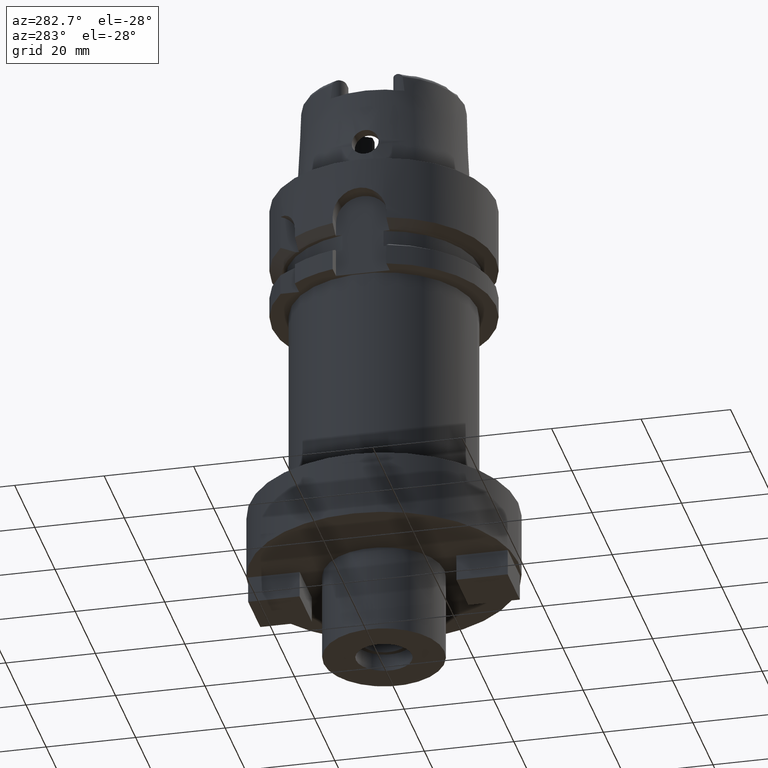
[diagram: clean part render]
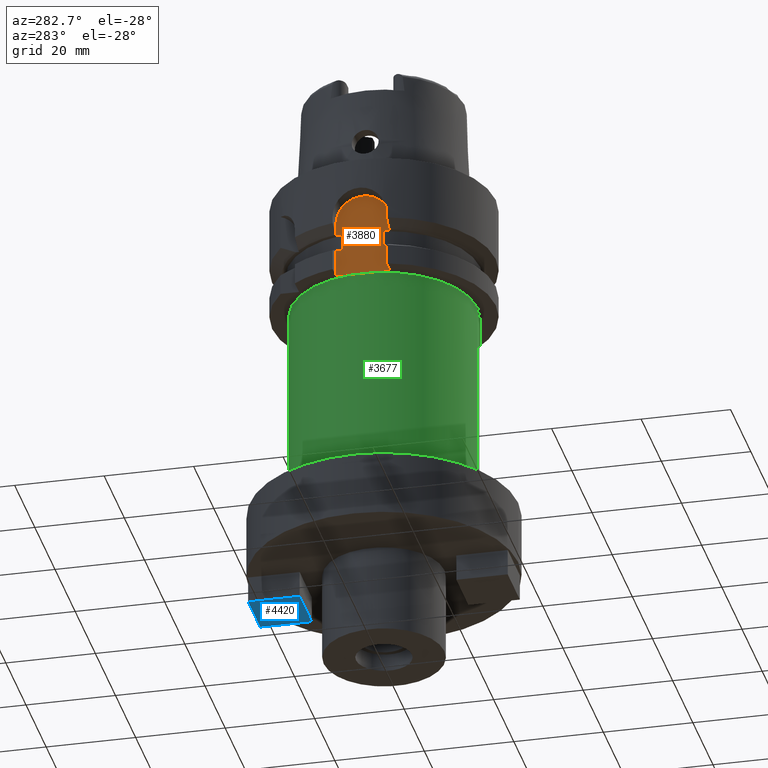
[diagram: same view with three faces highlighted in distinct colors, each labeled with its STEP entity id]
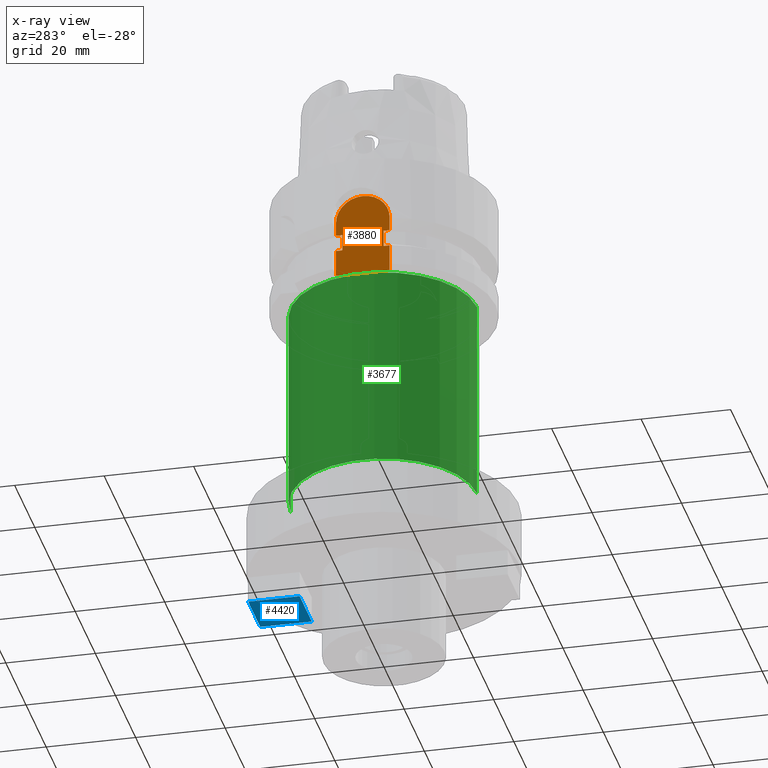
[diagram: x-ray of the same camera — body ghosted, the three highlighted faces saturated]
A machine part, auxiliary view with three faces highlighted in distinct colors.
The next image is the same camera in x-ray (body ghosted, the three faces saturated) — at least one of them is partly hidden behind the body in this view.
Their STEP definitions:

[orange] entity #3880 — the highlighted planar face has unit normal (1, 0, 0).
#1418=DIRECTION('',(0.E0,0.E0,1.E0));
#1419=VECTOR('',#1418,6.125E0);
#1420=CARTESIAN_POINT('',(-2.1E1,-6.E0,-2.6E1));
#1421=LINE('',#1420,#1419);
#1442=DIRECTION('',(0.E0,1.E0,0.E0));
#1443=VECTOR('',#1442,1.2E1);
#1444=CARTESIAN_POINT('',(-2.1E1,-6.E0,-2.6E1));
#1445=LINE('',#1444,#1443);
#1449=DIRECTION('',(2.044392294273E-14,1.E0,0.E0));
#1450=VECTOR('',#1449,1.390227771354E0);
#1451=CARTESIAN_POINT('',(-2.1E1,4.609772228646E0,-1.6125E1));
#1452=LINE('',#1451,#1450);
#1456=CARTESIAN_POINT('',(-2.1E1,0.E0,-1.3E1));
#1457=DIRECTION('',(1.E0,0.E0,0.E0));
#1458=DIRECTION('',(0.E0,1.E0,0.E0));
#1459=AXIS2_PLACEMENT_3D('',#1456,#1457,#1458);
#1464=CARTESIAN_POINT('',(-2.1E1,0.E0,-1.3E1));
#1465=DIRECTION('',(1.E0,0.E0,0.E0));
#1466=DIRECTION('',(0.E0,0.E0,1.E0));
#1467=AXIS2_PLACEMENT_3D('',#1464,#1465,#1466);
#1472=DIRECTION('',(-2.044392294273E-14,1.E0,0.E0));
#1473=VECTOR('',#1472,1.390227771354E0);
#1474=CARTESIAN_POINT('',(-2.1E1,-6.E0,-1.6125E1));
#1475=LINE('',#1474,#1473);
#1496=DIRECTION('',(0.E0,0.E0,-1.E0));
#1497=VECTOR('',#1496,6.125E0);
#1498=CARTESIAN_POINT('',(-2.1E1,6.E0,-1.9875E1));
#1499=LINE('',#1498,#1497);
#1570=DIRECTION('',(2.044392294273E-14,1.E0,0.E0));
#1571=VECTOR('',#1570,1.390227771354E0);
#1572=CARTESIAN_POINT('',(-2.1E1,4.609772228646E0,-1.9875E1));
#1573=LINE('',#1572,#1571);
#1618=DIRECTION('',(0.E0,0.E0,-1.E0));
#1619=VECTOR('',#1618,3.75E0);
#1620=CARTESIAN_POINT('',(-2.1E1,4.609772228646E0,-1.6125E1));
#1621=LINE('',#1620,#1619);
#1868=DIRECTION('',(0.E0,0.E0,1.E0));
#1869=VECTOR('',#1868,3.125E0);
#1870=CARTESIAN_POINT('',(-2.1E1,-6.E0,-1.6125E1));
#1871=LINE('',#1870,#1869);
#2039=DIRECTION('',(0.E0,0.E0,-1.E0));
#2040=VECTOR('',#2039,3.125E0);
#2041=CARTESIAN_POINT('',(-2.1E1,6.E0,-1.3E1));
#2042=LINE('',#2041,#2040);
#2088=DIRECTION('',(0.E0,0.E0,1.E0));
#2089=VECTOR('',#2088,3.75E0);
#2090=CARTESIAN_POINT('',(-2.1E1,-4.609772228646E0,-1.9875E1));
#2091=LINE('',#2090,#2089);
#2102=DIRECTION('',(-2.044392294273E-14,1.E0,0.E0));
#2103=VECTOR('',#2102,1.390227771354E0);
#2104=CARTESIAN_POINT('',(-2.1E1,-6.E0,-1.9875E1));
#2105=LINE('',#2104,#2103);
#2627=CARTESIAN_POINT('',(-2.1E1,6.E0,-2.6E1));
#2628=VERTEX_POINT('',#2627);
#2629=CARTESIAN_POINT('',(-2.1E1,-6.E0,-2.6E1));
#2630=VERTEX_POINT('',#2629);
#2673=CARTESIAN_POINT('',(-2.1E1,-6.E0,-1.9875E1));
#2674=VERTEX_POINT('',#2673);
#2677=CARTESIAN_POINT('',(-2.1E1,-6.E0,-1.6125E1));
#2679=VERTEX_POINT('',#2677);
#2681=CARTESIAN_POINT('',(-2.1E1,-6.E0,-1.3E1));
#2682=VERTEX_POINT('',#2681);
#2687=CARTESIAN_POINT('',(-2.1E1,6.E0,-1.9875E1));
#2688=VERTEX_POINT('',#2687);
#2689=CARTESIAN_POINT('',(-2.1E1,4.609772228646E0,-1.9875E1));
#2690=VERTEX_POINT('',#2689);
#2691=CARTESIAN_POINT('',(-2.1E1,4.609772228646E0,-1.6125E1));
#2692=VERTEX_POINT('',#2691);
#2693=CARTESIAN_POINT('',(-2.1E1,6.E0,-1.6125E1));
#2694=VERTEX_POINT('',#2693);
#2695=CARTESIAN_POINT('',(-2.1E1,6.E0,-1.3E1));
#2696=VERTEX_POINT('',#2695);
#2697=CARTESIAN_POINT('',(-2.1E1,0.E0,-7.E0));
#2698=VERTEX_POINT('',#2697);
#2699=CARTESIAN_POINT('',(-2.1E1,-4.609772228646E0,-1.6125E1));
#2700=VERTEX_POINT('',#2699);
#2701=CARTESIAN_POINT('',(-2.1E1,-4.609772228646E0,-1.9875E1));
#2702=VERTEX_POINT('',#2701);
#3849=CARTESIAN_POINT('',(-2.1E1,0.E0,0.E0));
#3850=DIRECTION('',(1.E0,0.E0,0.E0));
#3851=DIRECTION('',(0.E0,0.E0,1.E0));
#3852=AXIS2_PLACEMENT_3D('',#3849,#3850,#3851);
#3853=PLANE('',#3852);
#3854=ORIENTED_EDGE('',*,*,#3691,.T.);
#3856=ORIENTED_EDGE('',*,*,#3855,.F.);
#3858=ORIENTED_EDGE('',*,*,#3857,.F.);
#3860=ORIENTED_EDGE('',*,*,#3859,.F.);
#3862=ORIENTED_EDGE('',*,*,#3861,.T.);
#3864=ORIENTED_EDGE('',*,*,#3863,.F.);
#3866=ORIENTED_EDGE('',*,*,#3865,.T.);
#3868=ORIENTED_EDGE('',*,*,#3867,.T.);
#3870=ORIENTED_EDGE('',*,*,#3869,.F.);
#3872=ORIENTED_EDGE('',*,*,#3871,.T.);
#3874=ORIENTED_EDGE('',*,*,#3873,.F.);
#3876=ORIENTED_EDGE('',*,*,#3875,.F.);
#3877=ORIENTED_EDGE('',*,*,#3839,.F.);
#3878=EDGE_LOOP('',(#3854,#3856,#3858,#3860,#3862,#3864,#3866,#3868,#3870,#3872,
#3874,#3876,#3877));
#3879=FACE_OUTER_BOUND('',#3878,.F.);
#1460=CIRCLE('',#1459,6.E0);
#1468=CIRCLE('',#1467,6.E0);
#3691=EDGE_CURVE('',#2630,#2628,#1445,.T.);
#3839=EDGE_CURVE('',#2630,#2674,#1421,.T.);
#3855=EDGE_CURVE('',#2688,#2628,#1499,.T.);
#3857=EDGE_CURVE('',#2690,#2688,#1573,.T.);
#3859=EDGE_CURVE('',#2692,#2690,#1621,.T.);
#3861=EDGE_CURVE('',#2692,#2694,#1452,.T.);
#3863=EDGE_CURVE('',#2696,#2694,#2042,.T.);
#3865=EDGE_CURVE('',#2696,#2698,#1460,.T.);
#3867=EDGE_CURVE('',#2698,#2682,#1468,.T.);
#3869=EDGE_CURVE('',#2679,#2682,#1871,.T.);
#3871=EDGE_CURVE('',#2679,#2700,#1475,.T.);
#3873=EDGE_CURVE('',#2702,#2700,#2091,.T.);
#3875=EDGE_CURVE('',#2674,#2702,#2105,.T.);
#3880=ADVANCED_FACE('',(#3879),#3853,.F.);

[blue] entity #4420 — the highlighted planar face has unit normal (0, 0, -1).
#2189=DIRECTION('',(-1.E0,0.E0,0.E0));
#2190=VECTOR('',#2189,1.2E1);
#2191=CARTESIAN_POINT('',(6.E0,1.75E1,-9.6E1));
#2192=LINE('',#2191,#2190);
#2217=DIRECTION('',(0.E0,-1.E0,0.E0));
#2218=VECTOR('',#2217,1.15E1);
#2219=CARTESIAN_POINT('',(6.E0,2.9E1,-9.6E1));
#2220=LINE('',#2219,#2218);
#2245=DIRECTION('',(0.E0,-1.E0,0.E0));
#2246=VECTOR('',#2245,1.15E1);
#2247=CARTESIAN_POINT('',(-6.E0,2.9E1,-9.6E1));
#2248=LINE('',#2247,#2246);
#2252=DIRECTION('',(-1.E0,0.E0,0.E0));
#2253=VECTOR('',#2252,1.2E1);
#2254=CARTESIAN_POINT('',(6.E0,2.9E1,-9.6E1));
#2255=LINE('',#2254,#2253);
#2778=CARTESIAN_POINT('',(-6.E0,1.75E1,-9.6E1));
#2779=VERTEX_POINT('',#2778);
#2780=CARTESIAN_POINT('',(-6.E0,2.9E1,-9.6E1));
#2781=VERTEX_POINT('',#2780);
#2782=CARTESIAN_POINT('',(6.E0,1.75E1,-9.6E1));
#2783=VERTEX_POINT('',#2782);
#2784=CARTESIAN_POINT('',(6.E0,2.9E1,-9.6E1));
#2785=VERTEX_POINT('',#2784);
#4409=CARTESIAN_POINT('',(-6.E0,1.75E1,-9.6E1));
#4410=DIRECTION('',(0.E0,0.E0,-1.E0));
#4411=DIRECTION('',(0.E0,1.E0,0.E0));
#4412=AXIS2_PLACEMENT_3D('',#4409,#4410,#4411);
#4413=PLANE('',#4412);
#4414=ORIENTED_EDGE('',*,*,#4361,.T.);
#4415=ORIENTED_EDGE('',*,*,#4376,.F.);
#4416=ORIENTED_EDGE('',*,*,#4390,.F.);
#4417=ORIENTED_EDGE('',*,*,#4403,.T.);
#4418=EDGE_LOOP('',(#4414,#4415,#4416,#4417));
#4419=FACE_OUTER_BOUND('',#4418,.F.);
#4361=EDGE_CURVE('',#2781,#2779,#2248,.T.);
#4376=EDGE_CURVE('',#2783,#2779,#2192,.T.);
#4390=EDGE_CURVE('',#2785,#2783,#2220,.T.);
#4403=EDGE_CURVE('',#2785,#2781,#2255,.T.);
#4420=ADVANCED_FACE('',(#4419),#4413,.T.);

[green] entity #3677 — the highlighted cylindrical surface (partial cylindrical patch) has radius 20.8 mm, axis along (0, 0, 1).
#1133=CARTESIAN_POINT('',(0.E0,0.E0,-7.2E1));
#1134=DIRECTION('',(0.E0,0.E0,1.E0));
#1135=DIRECTION('',(0.E0,1.E0,0.E0));
#1136=AXIS2_PLACEMENT_3D('',#1133,#1134,#1135);
#1179=DIRECTION('',(0.E0,1.583274574248E-14,-1.E0));
#1180=VECTOR('',#1179,4.6E1);
#1181=CARTESIAN_POINT('',(0.E0,2.08E1,-2.6E1));
#1182=LINE('',#1181,#1180);
#1186=DIRECTION('',(0.E0,-1.583274574248E-14,-1.E0));
#1187=VECTOR('',#1186,4.6E1);
#1188=CARTESIAN_POINT('',(0.E0,-2.08E1,-2.6E1));
#1189=LINE('',#1188,#1187);
#1261=CARTESIAN_POINT('',(0.E0,0.E0,-2.6E1));
#1262=DIRECTION('',(0.E0,0.E0,-1.E0));
#1263=DIRECTION('',(0.E0,-1.E0,0.E0));
#1264=AXIS2_PLACEMENT_3D('',#1261,#1262,#1263);
#2611=CARTESIAN_POINT('',(0.E0,2.08E1,-7.2E1));
#2612=VERTEX_POINT('',#2611);
#2613=CARTESIAN_POINT('',(0.E0,-2.08E1,-7.2E1));
#2614=VERTEX_POINT('',#2613);
#2615=CARTESIAN_POINT('',(0.E0,2.08E1,-2.6E1));
#2616=VERTEX_POINT('',#2615);
#2617=CARTESIAN_POINT('',(0.E0,-2.08E1,-2.6E1));
#2618=VERTEX_POINT('',#2617);
#3665=CARTESIAN_POINT('',(0.E0,0.E0,-1.1675E2));
#3666=DIRECTION('',(0.E0,0.E0,1.E0));
#3667=DIRECTION('',(0.E0,1.E0,0.E0));
#3668=AXIS2_PLACEMENT_3D('',#3665,#3666,#3667);
#3669=CYLINDRICAL_SURFACE('',#3668,2.08E1);
#3670=ORIENTED_EDGE('',*,*,#3655,.F.);
#3672=ORIENTED_EDGE('',*,*,#3671,.F.);
#3673=ORIENTED_EDGE('',*,*,#3658,.T.);
#3674=ORIENTED_EDGE('',*,*,#3629,.F.);
#3675=EDGE_LOOP('',(#3670,#3672,#3673,#3674));
#3676=FACE_OUTER_BOUND('',#3675,.F.);
#1137=CIRCLE('',#1136,2.08E1);
#1265=CIRCLE('',#1264,2.08E1);
#3629=EDGE_CURVE('',#2612,#2614,#1137,.T.);
#3655=EDGE_CURVE('',#2616,#2612,#1182,.T.);
#3658=EDGE_CURVE('',#2618,#2614,#1189,.T.);
#3671=EDGE_CURVE('',#2618,#2616,#1265,.T.);
#3677=ADVANCED_FACE('',(#3676),#3669,.T.);